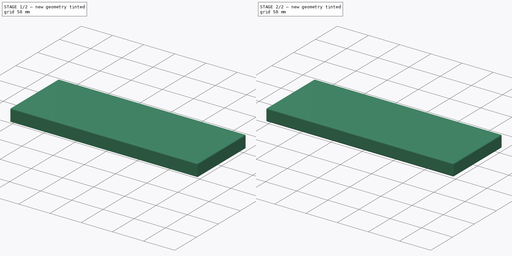
[diagram: build sequence overview — one tinted view per stage of 2, left to right]
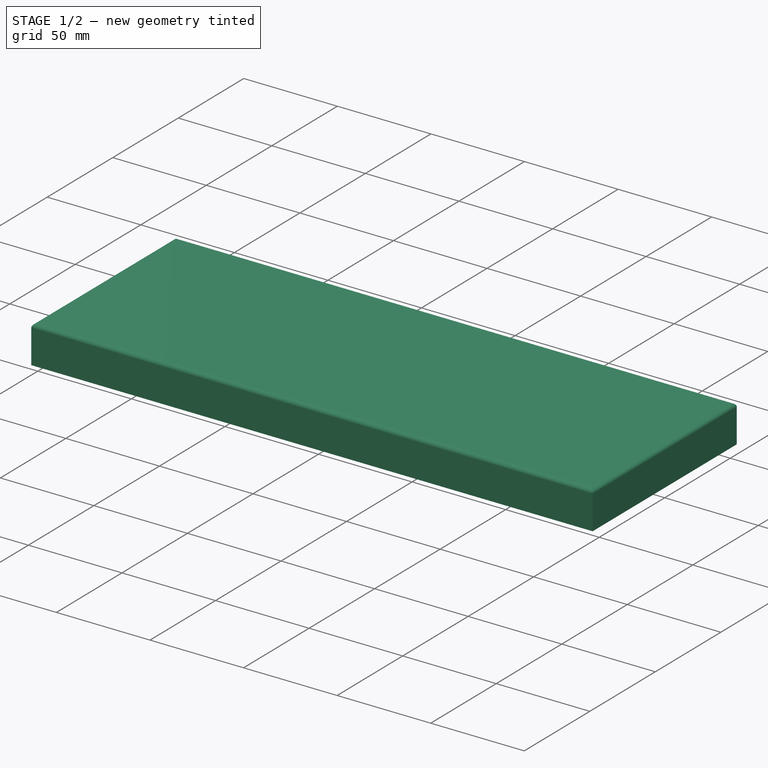
[diagram: stage 1 of 2 — iso view after this stage's code; geometry added in this stage tinted green]
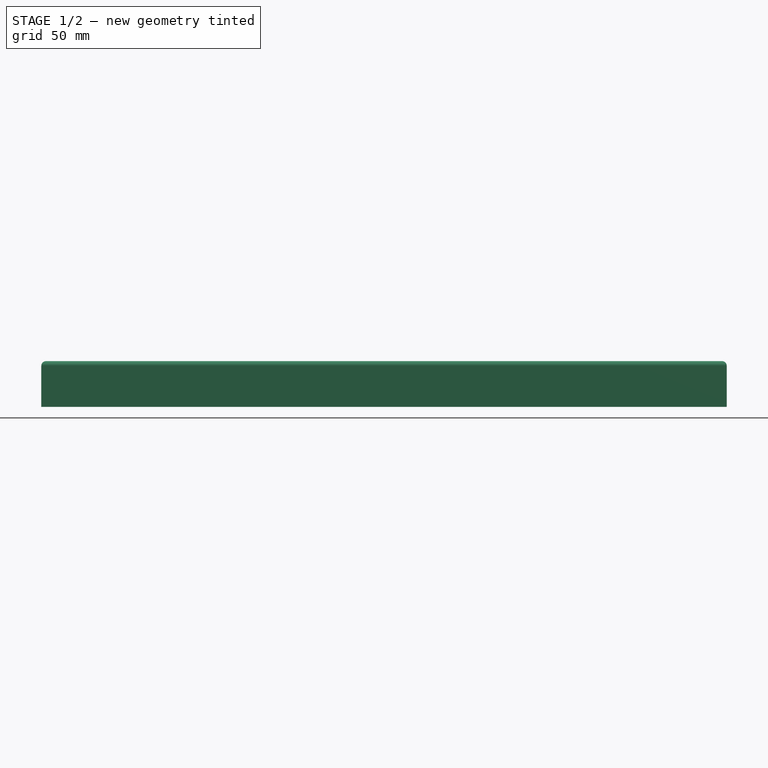
[diagram: stage 1 of 2 — front view after this stage's code; geometry added in this stage tinted green]
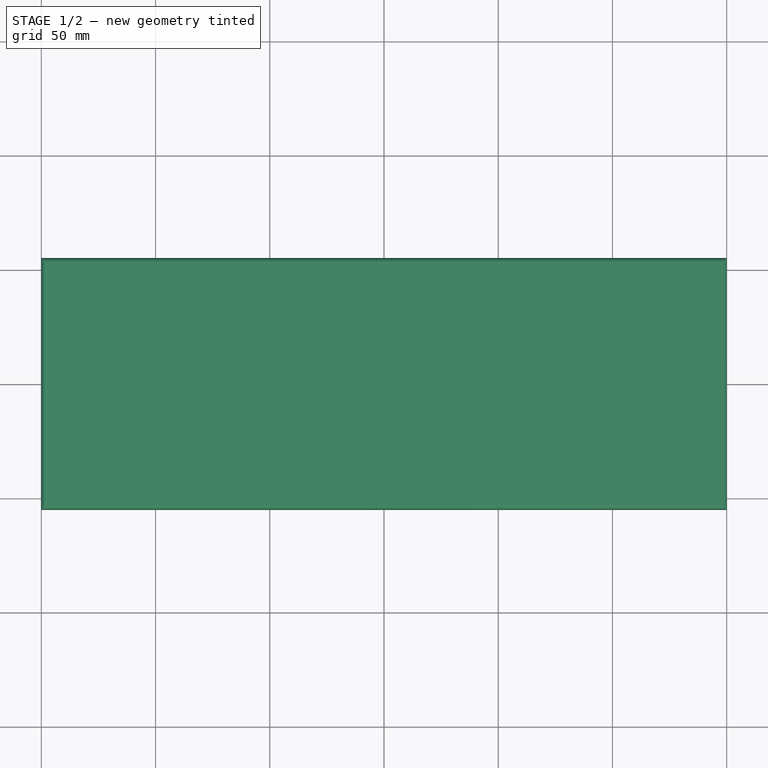
[diagram: stage 1 of 2 — top view after this stage's code; geometry added in this stage tinted green]
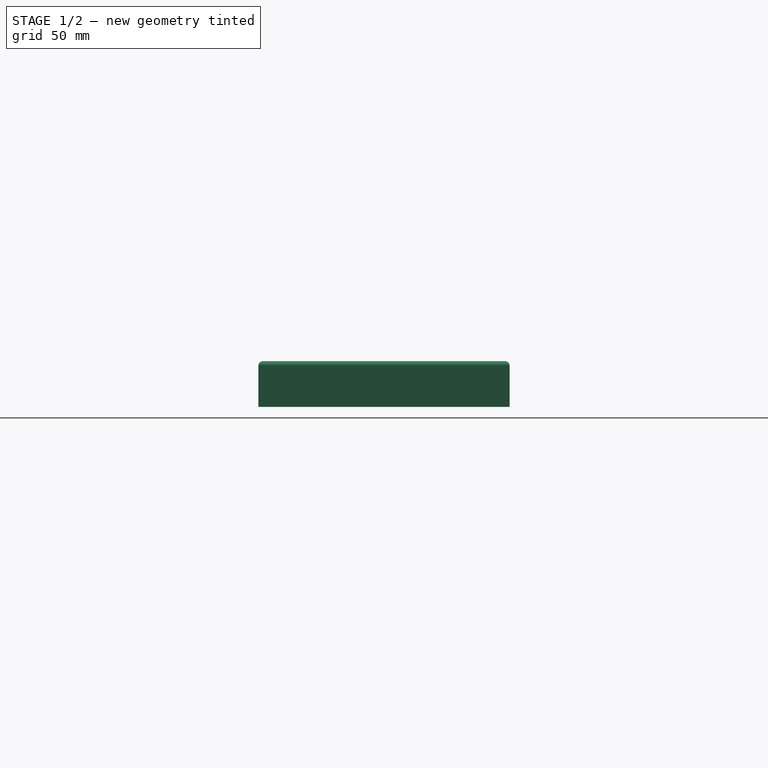
[diagram: stage 1 of 2 — right view after this stage's code; geometry added in this stage tinted green]
FCSTD DOCUMENT  (FreeCAD 0.19R24276 (Git))
Label: IDB60
License: All rights reserved
LicenseURL: http://en.wikipedia.org/wiki/All_rights_reserved
objects: Part::Part2DObjectPython×22, Sketcher::SketchObject×7, PartDesign::Body×5, App::Part×2, PartDesign::Fillet×2, PartDesign::Line×2, App::DocumentObjectGroup×1, PartDesign::Pad×1, PartDesign::ShapeBinder×1, PartDesign::Plane×1
note: 44 computed .brp shape members not serialized (recipe doc carries the construction recipe); baked Part::Feature solids carry a one-line shape summary decoded from their .brp

FEATURE [App::Part] Part  label="IDB Case Top"
  Origin = -> Origin
FEATURE [App::Part] Part001  label="IDB Case Bottom"
  Origin = -> Origin001
FEATURE [Part::Part2DObjectPython] Line  label="xline_1"  # Draft 2D object (typed FeaturePython)
  Area = 0
  ChamferSize = 0
  Closed = false
  End = (50,-50,0)
  FilletRadius = 0
  Length = 100
  MakeFace = true
  Placement = pos=(-50,-50,0) rot=(0,0,1;0rad)
  Points = (2) [(0,0,0),(100,0,0)]
  Start = (-50,-50,0)
  Subdivisions = 0
FEATURE [Part::Part2DObjectPython] Line001  label="xline_2"  # Draft 2D object (typed FeaturePython)
  Area = 0
  ChamferSize = 0
  Closed = false
  End = (50,-40,0)
  FilletRadius = 0
  Length = 100
  MakeFace = true
  Placement = pos=(-50,-40,0) rot=(0,0,1;0rad)
  Points = (2) [(0,0,0),(100,0,0)]
  Start = (-50,-40,0)
  Subdivisions = 0
FEATURE [Part::Part2DObjectPython] Line002  label="xline_3"  # Draft 2D object (typed FeaturePython)
  Area = 0
  ChamferSize = 0
  Closed = false
  End = (50,-30,0)
  FilletRadius = 0
  Length = 100
  MakeFace = true
  Placement = pos=(-50,-30,0) rot=(0,0,1;0rad)
  Points = (2) [(0,0,0),(100,0,0)]
  Start = (-50,-30,0)
  Subdivisions = 0
FEATURE [Part::Part2DObjectPython] Line003  label="xline_4"  # Draft 2D object (typed FeaturePython)
  Area = 0
  ChamferSize = 0
  Closed = false
  End = (50,-20,0)
  FilletRadius = 0
  Length = 100
  MakeFace = true
  Placement = pos=(-50,-20,0) rot=(0,0,1;0rad)
  Points = (2) [(0,0,0),(100,0,0)]
  Start = (-50,-20,0)
  Subdivisions = 0
FEATURE [Part::Part2DObjectPython] Line004  label="xline_5"  # Draft 2D object (typed FeaturePython)
  Area = 0
  ChamferSize = 0
  Closed = false
  End = (50,-10,0)
  FilletRadius = 0
  Length = 100
  MakeFace = true
  Placement = pos=(-50,-10,0) rot=(0,0,1;0rad)
  Points = (2) [(0,0,0),(100,0,0)]
  Start = (-50,-10,0)
  Subdivisions = 0
FEATURE [Part::Part2DObjectPython] Line005  label="xline_6"  # Draft 2D object (typed FeaturePython)
  Area = 0
  ChamferSize = 0
  Closed = false
  End = (50,0,0)
  FilletRadius = 0
  Length = 100
  MakeFace = true
  Placement = pos=(-50,0,0) rot=(0,0,1;0rad)
  Points = (2) [(0,0,0),(100,0,0)]
  Start = (-50,0,0)
  Subdivisions = 0
FEATURE [Part::Part2DObjectPython] Line006  label="xline_7"  # Draft 2D object (typed FeaturePython)
  Area = 0
  ChamferSize = 0
  Closed = false
  End = (50,10,0)
  FilletRadius = 0
  Length = 100
  MakeFace = true
  Placement = pos=(-50,10,0) rot=(0,0,1;0rad)
  Points = (2) [(0,0,0),(100,0,0)]
  Start = (-50,10,0)
  Subdivisions = 0
FEATURE [Part::Part2DObjectPython] Line007  label="xline_8"  # Draft 2D object (typed FeaturePython)
  Area = 0
  ChamferSize = 0
  Closed = false
  End = (50,20,0)
  FilletRadius = 0
  Length = 100
  MakeFace = true
  Placement = pos=(-50,20,0) rot=(0,0,1;0rad)
  Points = (2) [(0,0,0),(100,0,0)]
  Start = (-50,20,0)
  Subdivisions = 0
FEATURE [Part::Part2DObjectPython] Line008  label="xline_9"  # Draft 2D object (typed FeaturePython)
  Area = 0
  ChamferSize = 0
  Closed = false
  End = (50,30,0)
  FilletRadius = 0
  Length = 100
  MakeFace = true
  Placement = pos=(-50,30,0) rot=(0,0,1;0rad)
  Points = (2) [(0,0,0),(100,0,0)]
  Start = (-50,30,0)
  Subdivisions = 0
FEATURE [Part::Part2DObjectPython] Line009  label="xline_10"  # Draft 2D object (typed FeaturePython)
  Area = 0
  ChamferSize = 0
  Closed = false
  End = (50,40,0)
  FilletRadius = 0
  Length = 100
  MakeFace = true
  Placement = pos=(-50,40,0) rot=(0,0,1;0rad)
  Points = (2) [(0,0,0),(100,0,0)]
  Start = (-50,40,0)
  Subdivisions = 0
FEATURE [Part::Part2DObjectPython] Line010  label="xline_11"  # Draft 2D object (typed FeaturePython)
  Area = 0
  ChamferSize = 0
  Closed = false
  End = (50,50,0)
  FilletRadius = 0
  Length = 100
  MakeFace = true
  Placement = pos=(-50,50,0) rot=(0,0,1;0rad)
  Points = (2) [(0,0,0),(100,0,0)]
  Start = (-50,50,0)
  Subdivisions = 0
FEATURE [Part::Part2DObjectPython] Line011  label="yline_1"  # Draft 2D object (typed FeaturePython)
  Area = 0
  ChamferSize = 0
  Closed = false
  End = (-50,50,0)
  FilletRadius = 0
  Length = 100
  MakeFace = true
  Placement = pos=(-50,-50,0) rot=(0,0,1;0rad)
  Points = (2) [(0,0,0),(0,100,0)]
  Start = (-50,-50,0)
  Subdivisions = 0
FEATURE [Part::Part2DObjectPython] Line012  label="yline_2"  # Draft 2D object (typed FeaturePython)
  Area = 0
  ChamferSize = 0
  Closed = false
  End = (-40,50,0)
  FilletRadius = 0
  Length = 100
  MakeFace = true
  Placement = pos=(-40,-50,0) rot=(0,0,1;0rad)
  Points = (2) [(0,0,0),(0,100,0)]
  Start = (-40,-50,0)
  Subdivisions = 0
FEATURE [Part::Part2DObjectPython] Line013  label="yline_3"  # Draft 2D object (typed FeaturePython)
  Area = 0
  ChamferSize = 0
  Closed = false
  End = (-30,50,0)
  FilletRadius = 0
  Length = 100
  MakeFace = true
  Placement = pos=(-30,-50,0) rot=(0,0,1;0rad)
  Points = (2) [(0,0,0),(0,100,0)]
  Start = (-30,-50,0)
  Subdivisions = 0
FEATURE [Part::Part2DObjectPython] Line014  label="yline_4"  # Draft 2D object (typed FeaturePython)
  Area = 0
  ChamferSize = 0
  Closed = false
  End = (-20,50,0)
  FilletRadius = 0
  Length = 100
  MakeFace = true
  Placement = pos=(-20,-50,0) rot=(0,0,1;0rad)
  Points = (2) [(0,0,0),(0,100,0)]
  Start = (-20,-50,0)
  Subdivisions = 0
FEATURE [Part::Part2DObjectPython] Line015  label="yline_5"  # Draft 2D object (typed FeaturePython)
  Area = 0
  ChamferSize = 0
  Closed = false
  End = (-10,50,0)
  FilletRadius = 0
  Length = 100
  MakeFace = true
  Placement = pos=(-10,-50,0) rot=(0,0,1;0rad)
  Points = (2) [(0,0,0),(0,100,0)]
  Start = (-10,-50,0)
  Subdivisions = 0
FEATURE [Part::Part2DObjectPython] Line016  label="yline_6"  # Draft 2D object (typed FeaturePython)
  Area = 0
  ChamferSize = 0
  Closed = false
  End = (0,50,0)
  FilletRadius = 0
  Length = 100
  MakeFace = true
  Placement = pos=(0,-50,0) rot=(0,0,1;0rad)
  Points = (2) [(0,0,0),(0,100,0)]
  Start = (0,-50,0)
  Subdivisions = 0
FEATURE [Part::Part2DObjectPython] Line017  label="yline_7"  # Draft 2D object (typed FeaturePython)
  Area = 0
  ChamferSize = 0
  Closed = false
  End = (10,50,0)
  FilletRadius = 0
  Length = 100
  MakeFace = true
  Placement = pos=(10,-50,0) rot=(0,0,1;0rad)
  Points = (2) [(0,0,0),(0,100,0)]
  Start = (10,-50,0)
  Subdivisions = 0
FEATURE [Part::Part2DObjectPython] Line018  label="yline_8"  # Draft 2D object (typed FeaturePython)
  Area = 0
  ChamferSize = 0
  Closed = false
  End = (20,50,0)
  FilletRadius = 0
  Length = 100
  MakeFace = true
  Placement = pos=(20,-50,0) rot=(0,0,1;0rad)
  Points = (2) [(0,0,0),(0,100,0)]
  Start = (20,-50,0)
  Subdivisions = 0
FEATURE [Part::Part2DObjectPython] Line019  label="yline_9"  # Draft 2D object (typed FeaturePython)
  Area = 0
  ChamferSize = 0
  Closed = false
  End = (30,50,0)
  FilletRadius = 0
  Length = 100
  MakeFace = true
  Placement = pos=(30,-50,0) rot=(0,0,1;0rad)
  Points = (2) [(0,0,0),(0,100,0)]
  Start = (30,-50,0)
  Subdivisions = 0
FEATURE [Part::Part2DObjectPython] Line020  label="yline_10"  # Draft 2D object (typed FeaturePython)
  Area = 0
  ChamferSize = 0
  Closed = false
  End = (40,50,0)
  FilletRadius = 0
  Length = 100
  MakeFace = true
  Placement = pos=(40,-50,0) rot=(0,0,1;0rad)
  Points = (2) [(0,0,0),(0,100,0)]
  Start = (40,-50,0)
  Subdivisions = 0
FEATURE [Part::Part2DObjectPython] Line021  label="yline_11"  # Draft 2D object (typed FeaturePython)
  Area = 0
  ChamferSize = 0
  Closed = false
  End = (50,50,0)
  FilletRadius = 0
  Length = 100
  MakeFace = true
  Placement = pos=(50,-50,0) rot=(0,0,1;0rad)
  Points = (2) [(0,0,0),(0,100,0)]
  Start = (50,-50,0)
  Subdivisions = 0
FEATURE [App::DocumentObjectGroup] Grid
  Group = -> [Line,Line001,Line002,Line003,Line004,Line005,Line006,Line007,Line008,Line009,Line010,Line011,Line012,Line013,Line014,Line015,Line016,Line017,Line018,Line019,Line020,Line021]
FEATURE [Sketcher::SketchObject] Sketch
  FullyConstrained = true
  MapMode = 5
  Placement = pos=(0,0,0) rot=(1,0,0;1.5708rad)
  Support = -> [XZ_Plane002]
FEATURE [PartDesign::Body] Body
  Group = -> [Sketch]
  Origin = -> Origin002
FEATURE [Sketcher::SketchObject] Sketch001
  FullyConstrained = true
  MapMode = 5
  Support = -> [XY_Plane003]
  sketch-geometry (4):
    g0: LineSegment StartX=-150 StartY=55 StartZ=0 EndX=150 EndY=55 EndZ=0
    g1: LineSegment StartX=150 StartY=55 StartZ=0 EndX=150 EndY=-55 EndZ=0
    g2: LineSegment StartX=150 StartY=-55 StartZ=0 EndX=-150 EndY=-55 EndZ=0
    g3: LineSegment StartX=-150 StartY=-55 StartZ=0 EndX=-150 EndY=55 EndZ=0
  constraints (10):
    c: Coincident(g0,g1)
    c: Coincident(g1,g2)
    c: Coincident(g2,g3)
    c: Coincident(g3,g0)
    c: Horizontal(g2)
    c: Vertical(g1)
    c: DistanceX(g0,g0) = 300
    c: DistanceY(g3,g3) = 110
    c: Symmetric(g0,g2,g-1)
    c: Symmetric(g0,g0,g-2)
FEATURE [PartDesign::Pad] Pad
  Direction = (1,1,1)
  Length = 20
  Length2 = 100
  Profile = -> Sketch001
  Type = 0
FEATURE [PartDesign::Fillet] Fillet
  Base = -> Pad [Face6]
  BaseFeature = -> Pad
  Radius = 2
  SupportTransform = false
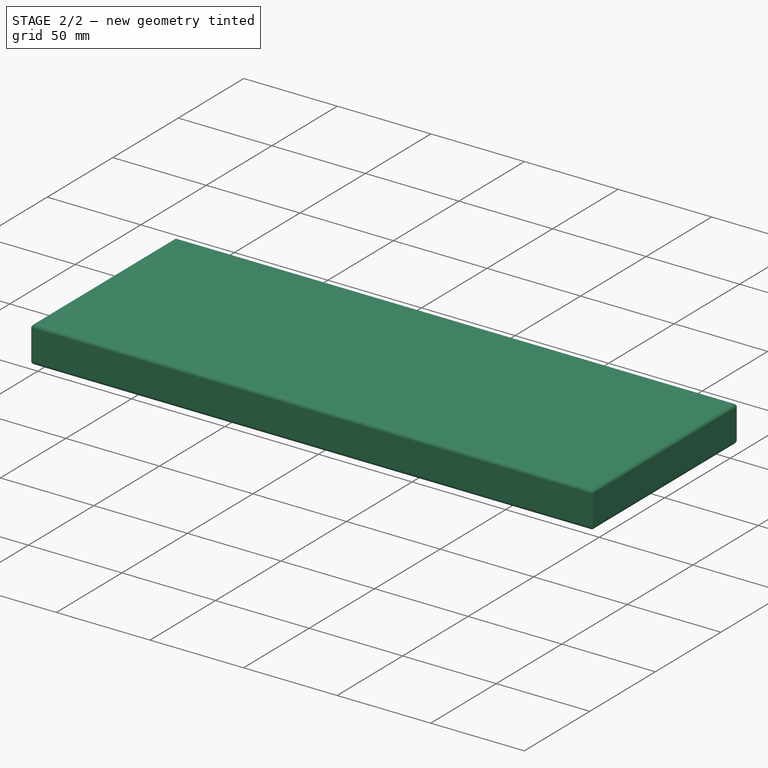
[diagram: stage 2 of 2 — iso view after this stage's code; geometry added in this stage tinted green]
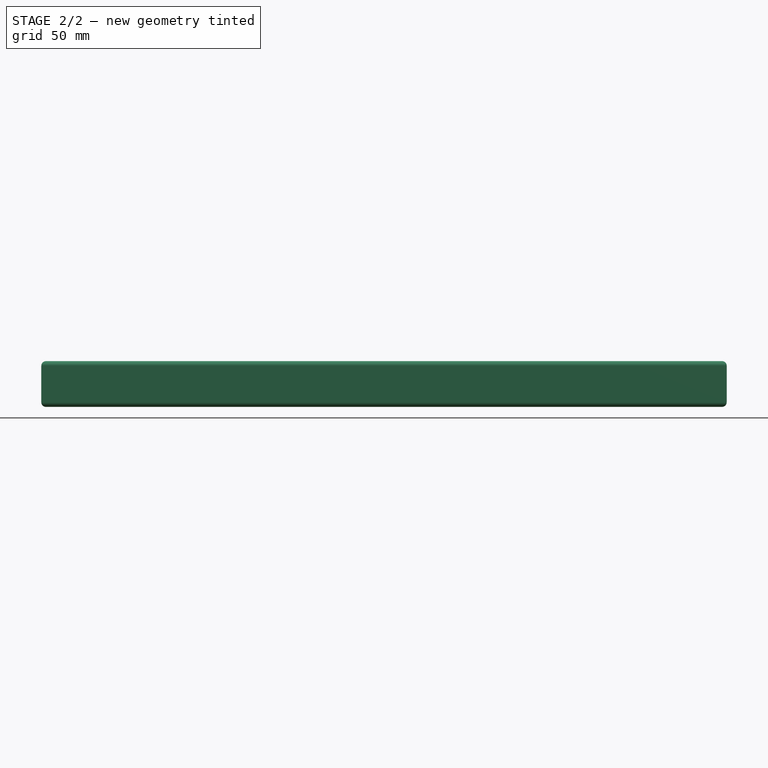
[diagram: stage 2 of 2 — front view after this stage's code; geometry added in this stage tinted green]
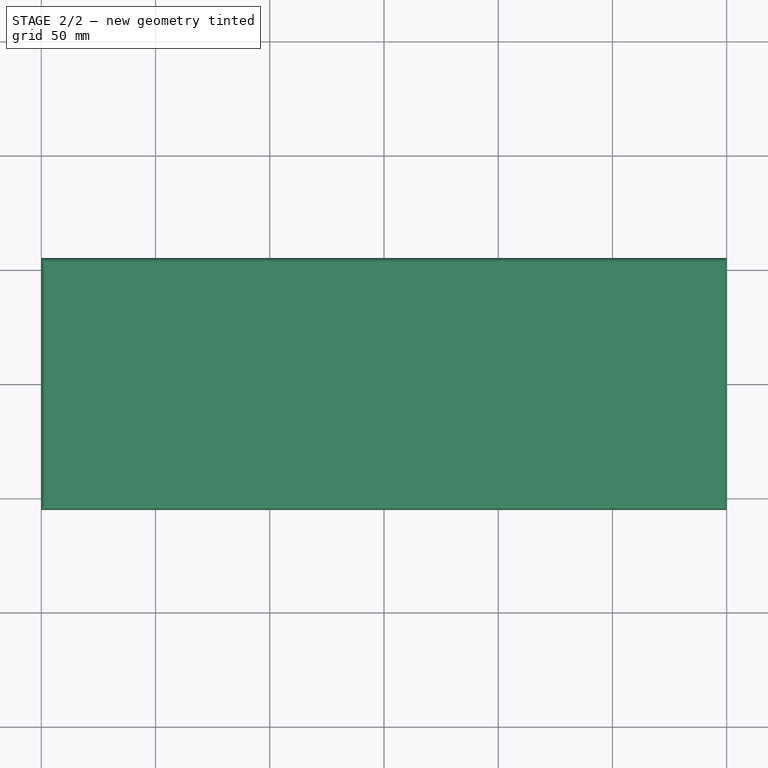
[diagram: stage 2 of 2 — top view after this stage's code; geometry added in this stage tinted green]
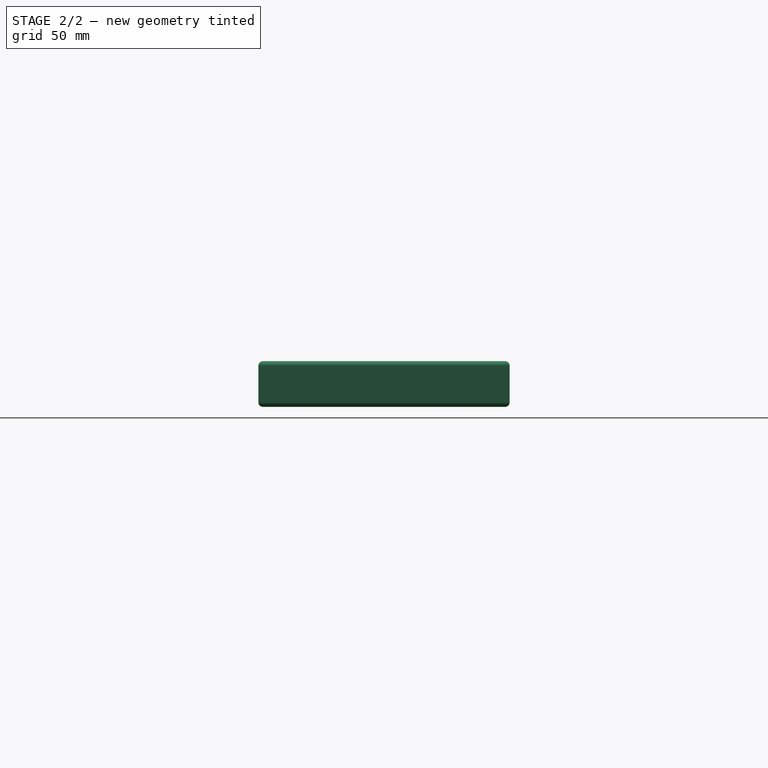
[diagram: stage 2 of 2 — right view after this stage's code; geometry added in this stage tinted green]
FEATURE [PartDesign::Fillet] Fillet001
  Base = -> Fillet [Face4]
  BaseFeature = -> Fillet
  Radius = 2
  SupportTransform = false
FEATURE [PartDesign::Line] DatumLine
  AttacherType = Attacher::AttachEngineLine
  Length = 20
  MapMode = 42
  Placement = pos=(-2e-15,-1.2e-15,0) rot=(0,0,1;0rad)
  ResizeMode = 0
  Support = -> [Fillet001]
FEATURE [PartDesign::Line] DatumLine001
  AttacherType = Attacher::AttachEngineLine
  Length = 20
  ResizeMode = 0
FEATURE [PartDesign::Body] Body001
  Group = -> [Sketch001,Pad,Fillet,Fillet001,DatumLine,DatumLine001]
  Origin = -> Origin003
  Tip = -> Fillet001
FEATURE [Sketcher::SketchObject] Sketch002
  FullyConstrained = true
  MapMode = 5
  Support = -> [XY_Plane004]
FEATURE [PartDesign::Body] Body002
  Group = -> [Sketch002]
  Origin = -> Origin004
FEATURE [PartDesign::Body] Body003
  Origin = -> Origin005
FEATURE [Sketcher::SketchObject] Sketch003
  FullyConstrained = true
  MapMode = 5
  Placement = pos=(0,0,0) rot=(1,0,0;1.5708rad)
  Support = -> [XZ_Plane006]
FEATURE [Sketcher::SketchObject] Sketch004
  FullyConstrained = true
  MapMode = 5
  Placement = pos=(0,0,0) rot=(1,0,0;1.5708rad)
  Support = -> [XZ_Plane006]
FEATURE [Sketcher::SketchObject] Sketch005
  FullyConstrained = true
  MapMode = 5
  Placement = pos=(0,0,0) rot=(1,0,0;1.5708rad)
  Support = -> [XZ_Plane006]
FEATURE [PartDesign::ShapeBinder] CopyFillet001
  TraceSupport = false
FEATURE [Sketcher::SketchObject] Sketch006
  FullyConstrained = true
  MapMode = 5
  Placement = pos=(0,-55,0) rot=(1,0,0;1.5708rad)
  Support = -> [CopyFillet001]
FEATURE [PartDesign::Plane] DatumPlane
  Length = 92.6491
  MapMode = 45
  Placement = pos=(150,-55,18) rot=(0.57735,0.57735,0.57735;2.0944rad)
  ResizeMode = 0
  Support = -> [CopyFillet001]
  Width = 62.6491
FEATURE [PartDesign::Body] Body004
  Group = -> [Sketch003,Sketch004,Sketch005,CopyFillet001,Sketch006,DatumPlane]
  Origin = -> Origin006
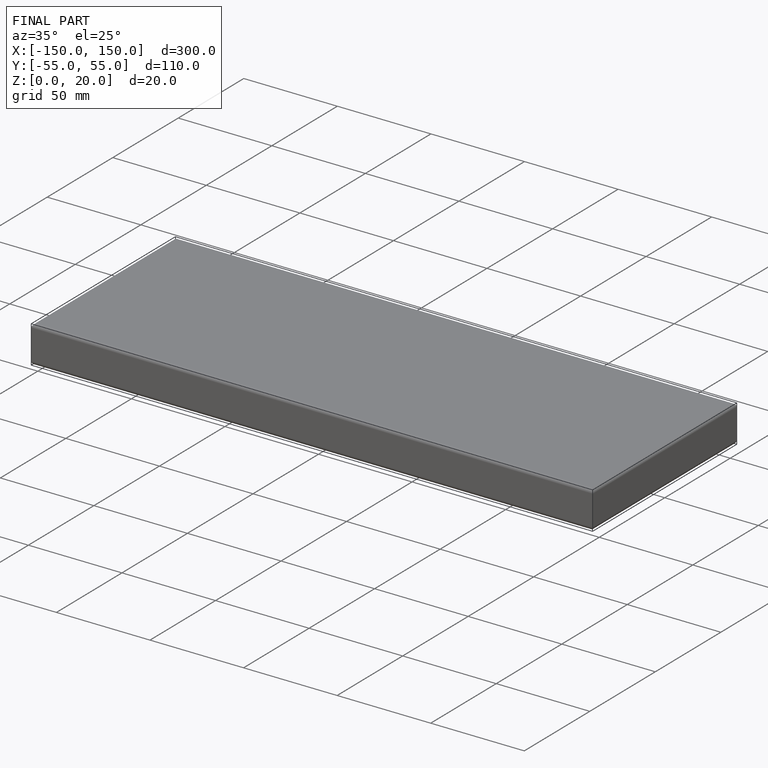
[diagram: finished part — iso view with bounding-box wireframe]
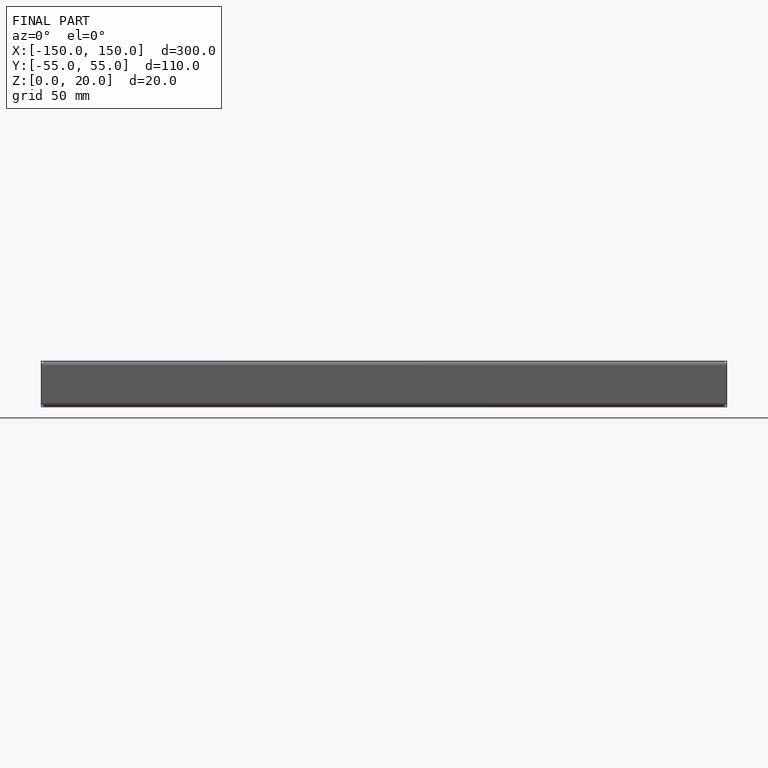
[diagram: finished part — front view with bounding-box wireframe]
